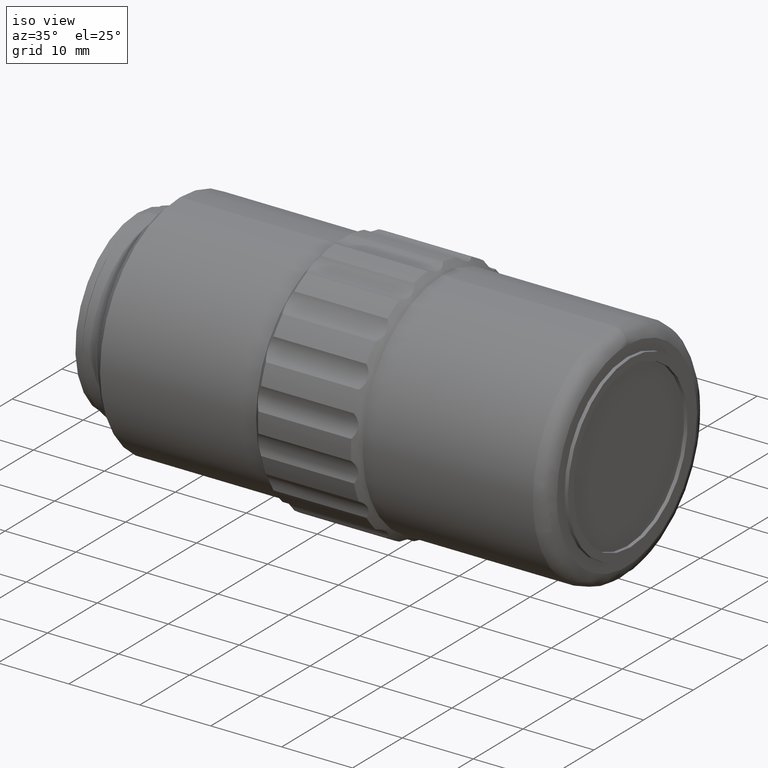
[diagram: clean part render]
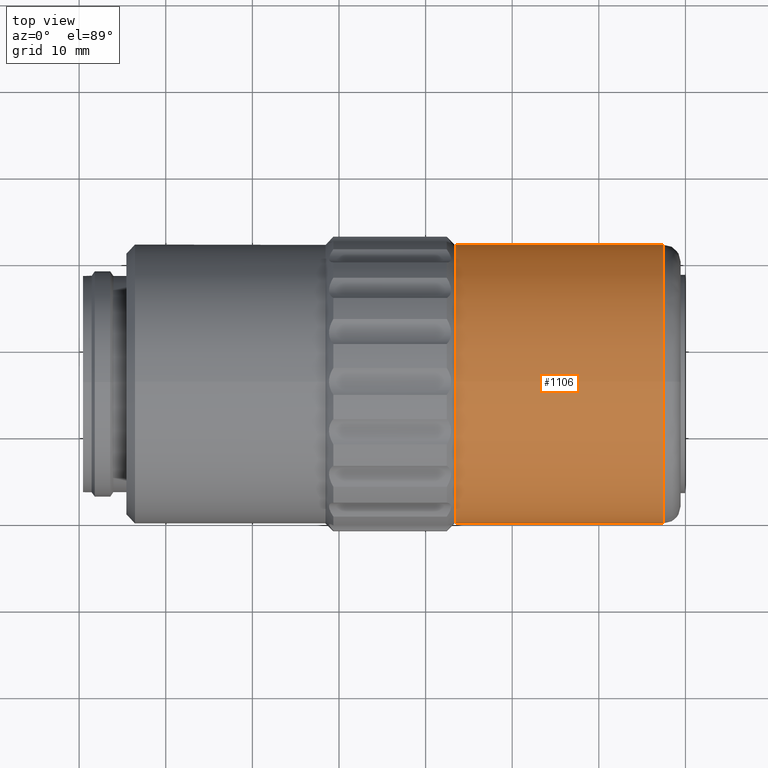
[diagram: tour spotlight — one face highlighted and labeled with its STEP entity id]
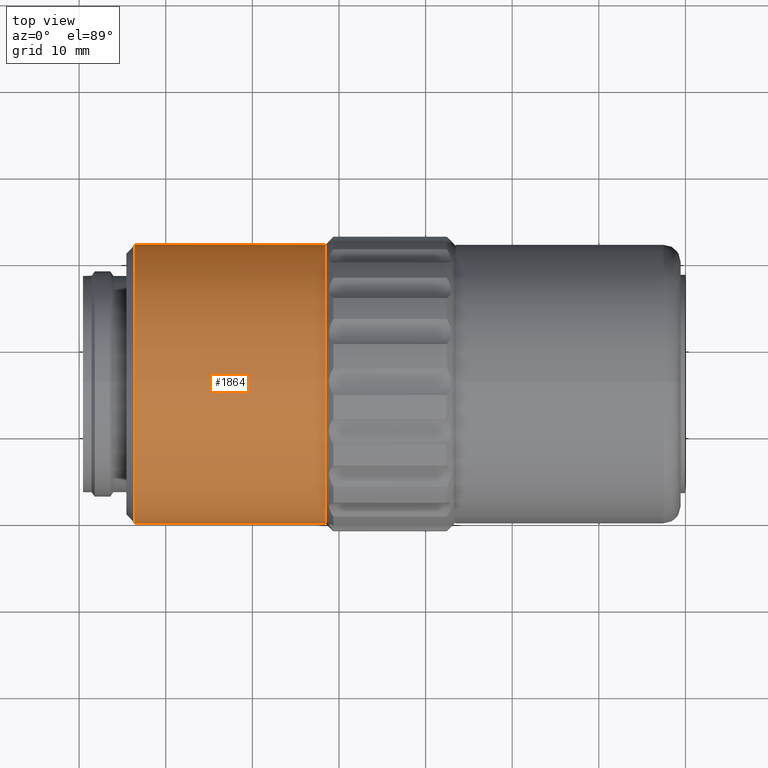
[diagram: tour spotlight — one face highlighted and labeled with its STEP entity id]
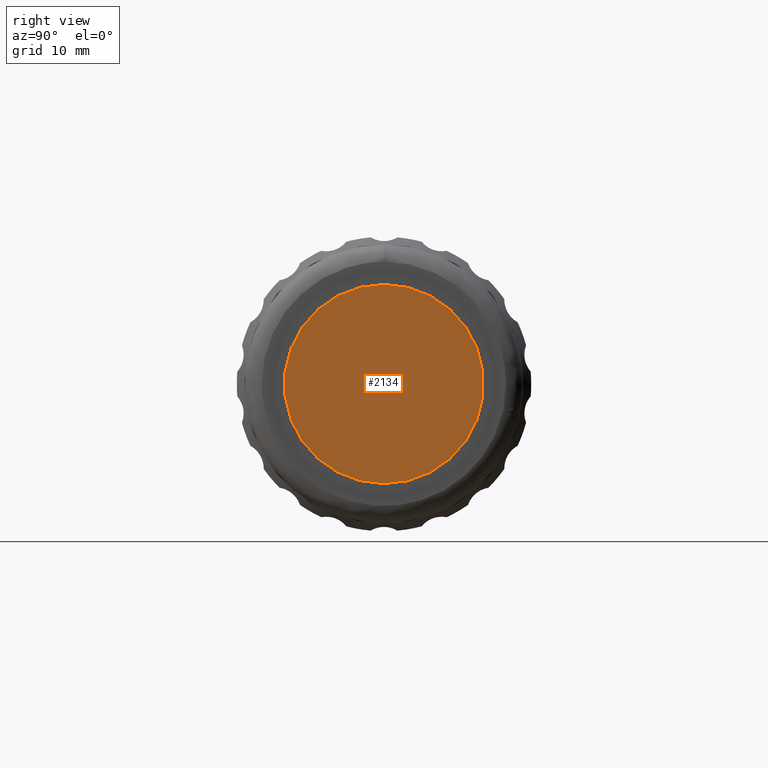
[diagram: tour spotlight — one face highlighted and labeled with its STEP entity id]
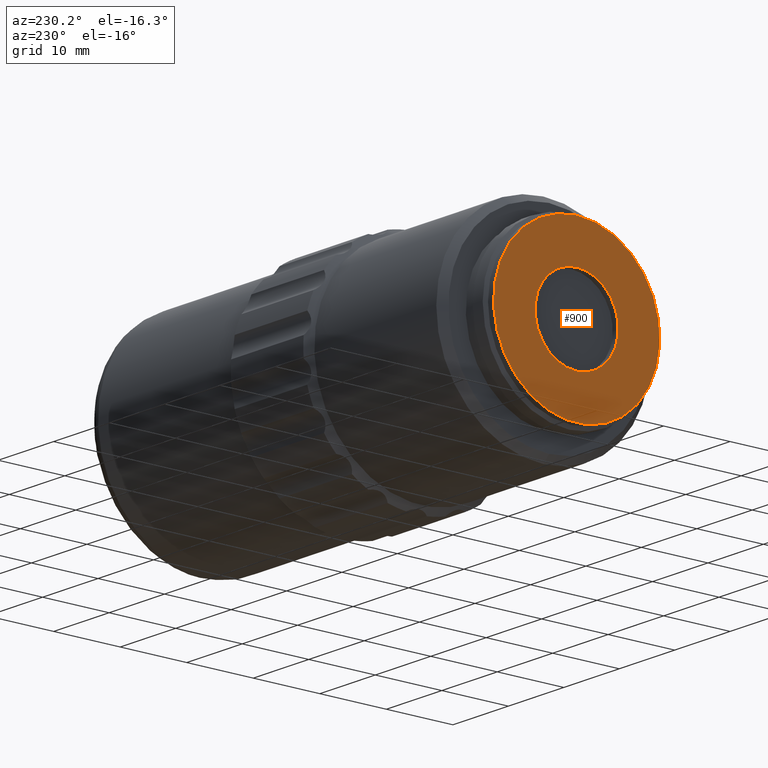
[diagram: tour spotlight — one face highlighted and labeled with its STEP entity id]
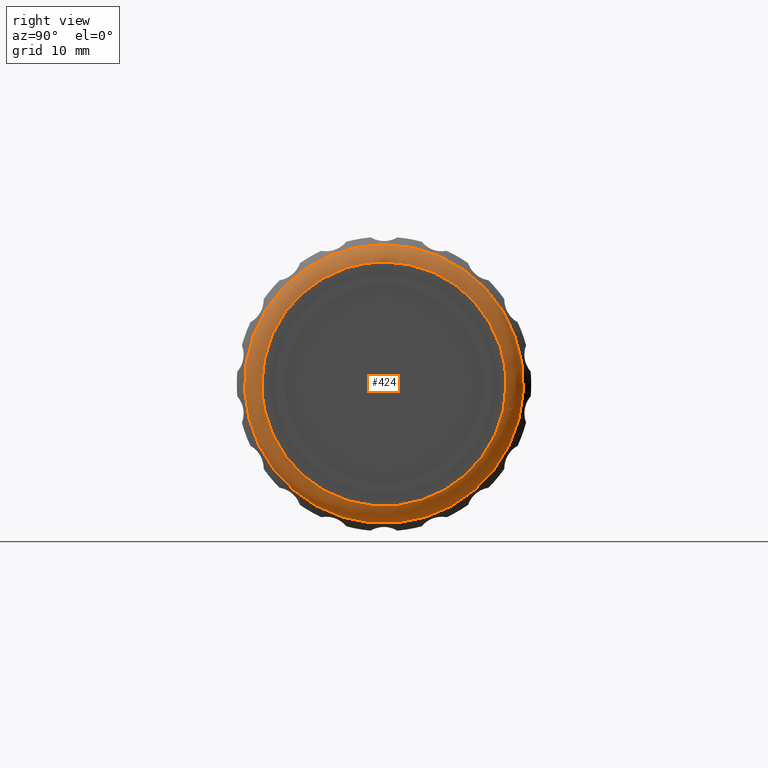
[diagram: tour spotlight — one face highlighted and labeled with its STEP entity id]
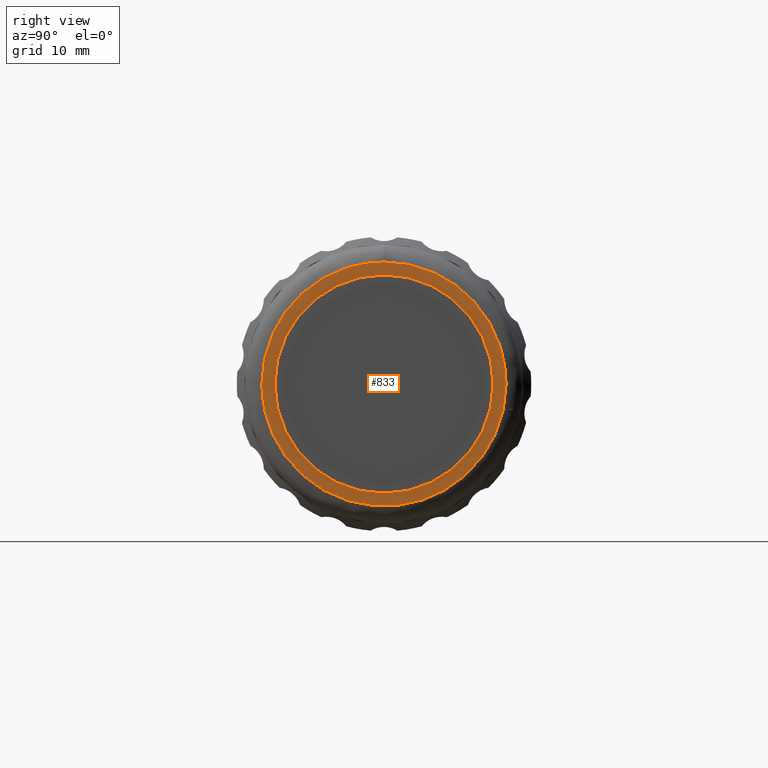
[diagram: tour spotlight — one face highlighted and labeled with its STEP entity id]
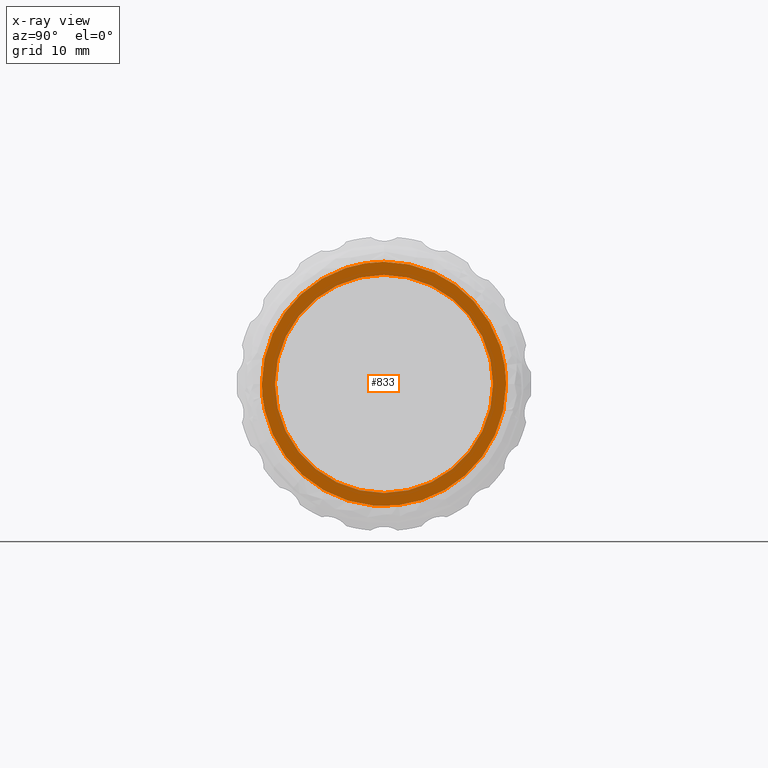
[diagram: x-ray of the same camera — body ghosted, this tour face saturated]
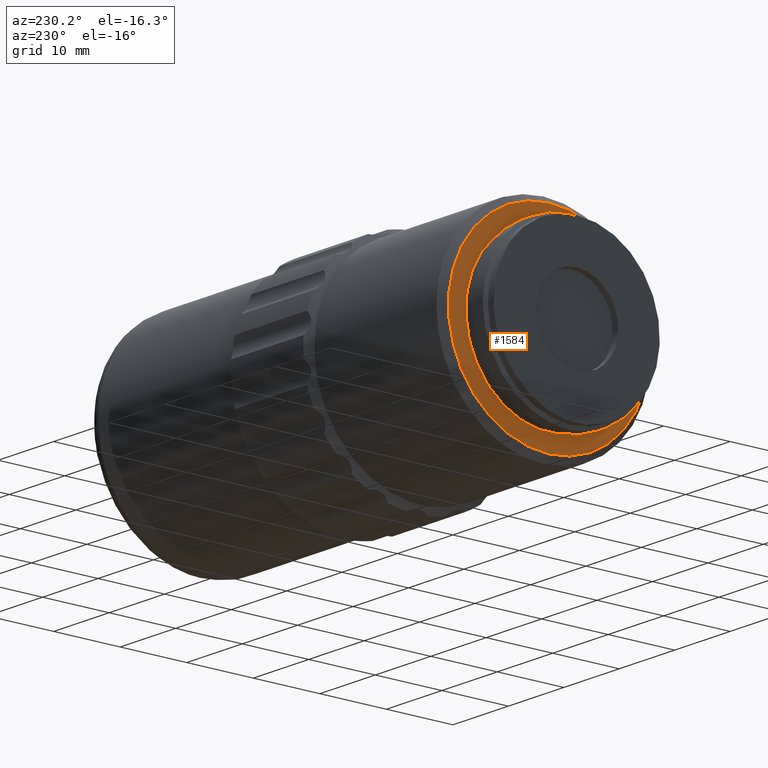
[diagram: tour spotlight — one face highlighted and labeled with its STEP entity id]
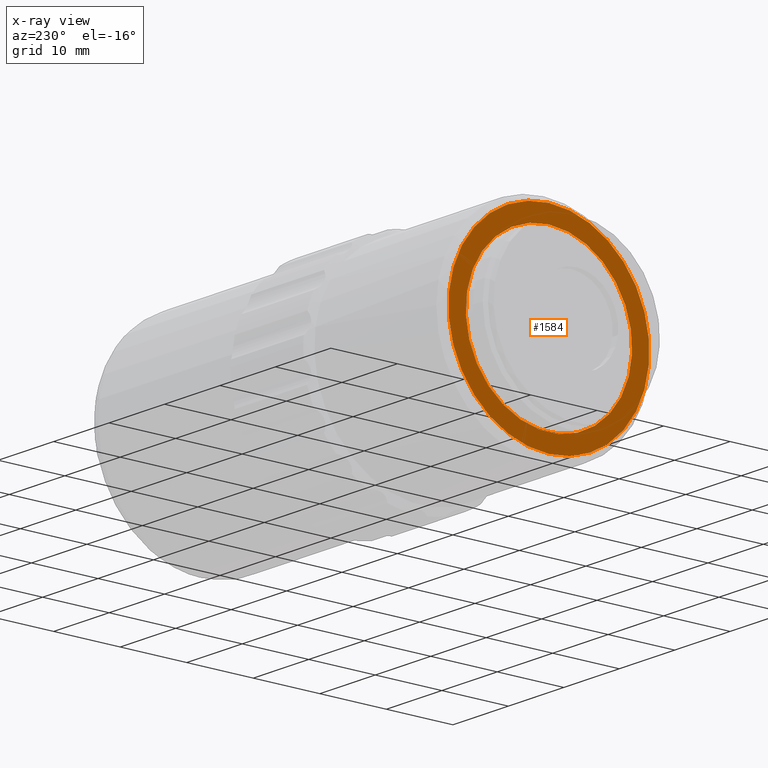
[diagram: x-ray of the same camera — body ghosted, this tour face saturated]
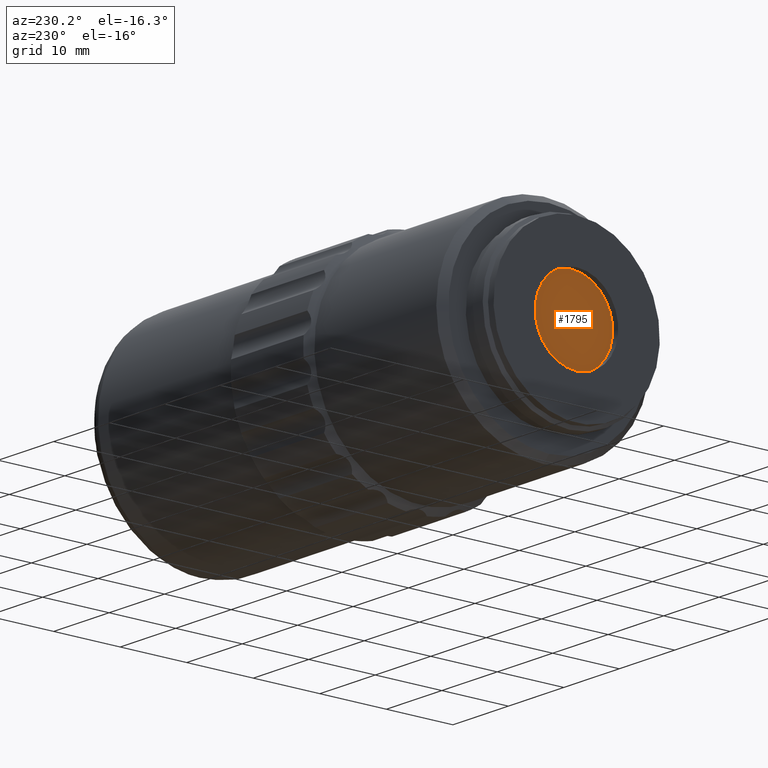
[diagram: tour spotlight — one face highlighted and labeled with its STEP entity id]
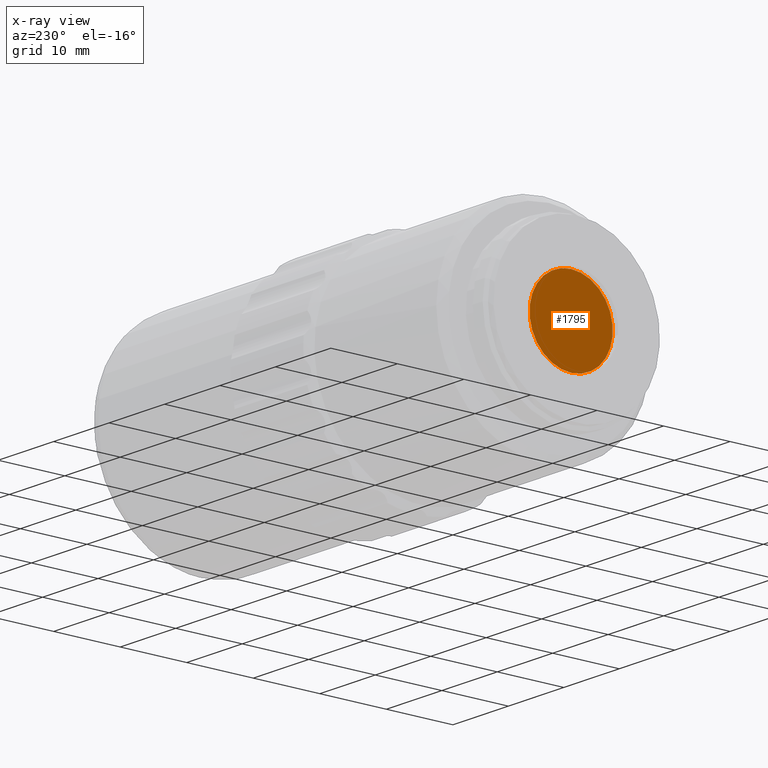
[diagram: x-ray of the same camera — body ghosted, this tour face saturated]
A machine part: a face-by-face anatomy tour. The part has 57 B-rep faces; the first image is the clean iso view, then the 8 largest visible faces are spotlighted one at a time (largest first), each with its STEP entity span.

Face 1 — top view, entity #1106. In plain terms, the highlighted cylindrical surface (bore or boss wall) has radius 16.1 mm, axis along (-1, 0, 0).
Definition (entity closure, byte-faithful):
#56 = CARTESIAN_POINT ( 'NONE',  ( 44.14685803487879667, 46.02096199999999726, 0.000000000000000000 ) ) ;
#72 = EDGE_CURVE ( 'NONE', #780, #780, #976, .T. ) ;
#89 = FACE_OUTER_BOUND ( 'NONE', #842, .T. ) ;
#152 = AXIS2_PLACEMENT_3D ( 'NONE', #209, #865, #1537 ) ;
#209 = CARTESIAN_POINT ( 'NONE',  ( 57.44685803487880804, 46.02096199999999726, 0.000000000000000000 ) ) ;
#308 = ORIENTED_EDGE ( 'NONE', *, *, #72, .T. ) ;
#562 = AXIS2_PLACEMENT_3D ( 'NONE', #56, #857, #695 ) ;
#695 = DIRECTION ( 'NONE',  ( 0.000000000000000000, 0.000000000000000000, 1.000000000000000000 ) ) ;
#774 = ORIENTED_EDGE ( 'NONE', *, *, #1344, .T. ) ;
#780 = VERTEX_POINT ( 'NONE', #1282 ) ;
#842 = EDGE_LOOP ( 'NONE', ( #308 ) ) ;
#857 = DIRECTION ( 'NONE',  ( -1.000000000000000000, 0.000000000000000000, 0.000000000000000000 ) ) ;
#865 = DIRECTION ( 'NONE',  ( -1.000000000000000000, 0.000000000000000000, 0.000000000000000000 ) ) ;
#976 = CIRCLE ( 'NONE', #1393, 16.10000000000000142 ) ;
#993 = CARTESIAN_POINT ( 'NONE',  ( 33.44685803487879383, 46.02096199999999726, 0.000000000000000000 ) ) ;
#1069 = EDGE_LOOP ( 'NONE', ( #774 ) ) ;
#1083 = CIRCLE ( 'NONE', #152, 16.10000000000000142 ) ;
#1106 = ADVANCED_FACE ( 'NONE', ( #89, #1856 ), #1876, .T. ) ;
#1129 = CARTESIAN_POINT ( 'NONE',  ( 57.44685803487880804, 46.02096199999999726, 16.10000000000000142 ) ) ;
#1282 = CARTESIAN_POINT ( 'NONE',  ( 33.44685803487879383, 46.02096199999999726, 16.10000000000000142 ) ) ;
#1344 = EDGE_CURVE ( 'NONE', #1462, #1462, #1083, .T. ) ;
#1393 = AXIS2_PLACEMENT_3D ( 'NONE', #993, #2005, #1839 ) ;
#1462 = VERTEX_POINT ( 'NONE', #1129 ) ;
#1537 = DIRECTION ( 'NONE',  ( 0.000000000000000000, 0.000000000000000000, 1.000000000000000000 ) ) ;
#1839 = DIRECTION ( 'NONE',  ( 0.000000000000000000, 0.000000000000000000, 1.000000000000000000 ) ) ;
#1856 = FACE_OUTER_BOUND ( 'NONE', #1069, .T. ) ;
#1876 = CYLINDRICAL_SURFACE ( 'NONE', #562, 16.10000000000000142 ) ;
#2005 = DIRECTION ( 'NONE',  ( 1.000000000000000000, -0.000000000000000000, -0.000000000000000000 ) ) ;

Face 2 — top view, entity #1864. In plain terms, the highlighted cylindrical surface (bore or boss wall) has radius 16.1 mm, axis along (-1, 0, 0).
Definition (entity closure, byte-faithful):
#151 = EDGE_LOOP ( 'NONE', ( #489 ) ) ;
#156 = CYLINDRICAL_SURFACE ( 'NONE', #1875, 16.10000000000000142 ) ;
#199 = DIRECTION ( 'NONE',  ( 0.000000000000000000, 0.000000000000000000, 1.000000000000000000 ) ) ;
#216 = EDGE_CURVE ( 'NONE', #960, #960, #1323, .T. ) ;
#429 = CARTESIAN_POINT ( 'NONE',  ( 18.44685803487879738, 29.92096199999999584, 0.000000000000000000 ) ) ;
#451 = DIRECTION ( 'NONE',  ( -1.000000000000000000, 0.000000000000000000, 0.000000000000000000 ) ) ;
#489 = ORIENTED_EDGE ( 'NONE', *, *, #1684, .F. ) ;
#536 = DIRECTION ( 'NONE',  ( 1.000000000000000000, -0.000000000000000000, -0.000000000000000000 ) ) ;
#580 = DIRECTION ( 'NONE',  ( 1.000000000000000000, 0.000000000000000000, 0.000000000000000000 ) ) ;
#605 = EDGE_LOOP ( 'NONE', ( #1603 ) ) ;
#688 = CIRCLE ( 'NONE', #1424, 16.10000000000000142 ) ;
#749 = CARTESIAN_POINT ( 'NONE',  ( 18.44685803487879738, 46.02096199999999726, 0.000000000000000000 ) ) ;
#867 = AXIS2_PLACEMENT_3D ( 'NONE', #1025, #536, #199 ) ;
#960 = VERTEX_POINT ( 'NONE', #1619 ) ;
#1025 = CARTESIAN_POINT ( 'NONE',  ( -3.553141965121202617, 46.02096199999999726, 0.000000000000000000 ) ) ;
#1275 = FACE_OUTER_BOUND ( 'NONE', #605, .T. ) ;
#1298 = DIRECTION ( 'NONE',  ( 0.000000000000000000, 0.000000000000000000, 1.000000000000000000 ) ) ;
#1323 = CIRCLE ( 'NONE', #867, 16.10000000000000142 ) ;
#1424 = AXIS2_PLACEMENT_3D ( 'NONE', #749, #580, #1898 ) ;
#1603 = ORIENTED_EDGE ( 'NONE', *, *, #216, .T. ) ;
#1619 = CARTESIAN_POINT ( 'NONE',  ( -3.553141965121202617, 46.02096199999999726, 16.10000000000000142 ) ) ;
#1684 = EDGE_CURVE ( 'NONE', #1921, #1921, #688, .T. ) ;
#1800 = CARTESIAN_POINT ( 'NONE',  ( 6.946858034878798271, 46.02096199999999726, 0.000000000000000000 ) ) ;
#1864 = ADVANCED_FACE ( 'NONE', ( #1275, #1943 ), #156, .T. ) ;
#1875 = AXIS2_PLACEMENT_3D ( 'NONE', #1800, #451, #1298 ) ;
#1898 = DIRECTION ( 'NONE',  ( 0.000000000000000000, -1.000000000000000000, 0.000000000000000000 ) ) ;
#1921 = VERTEX_POINT ( 'NONE', #429 ) ;
#1943 = FACE_OUTER_BOUND ( 'NONE', #151, .T. ) ;

Face 3 — right view, entity #2134. In plain terms, the highlighted planar face has unit normal (1, 0, 0).
Definition (entity closure, byte-faithful):
#2 = EDGE_LOOP ( 'NONE', ( #330 ) ) ;
#289 = FACE_OUTER_BOUND ( 'NONE', #2, .T. ) ;
#330 = ORIENTED_EDGE ( 'NONE', *, *, #478, .T. ) ;
#345 = AXIS2_PLACEMENT_3D ( 'NONE', #1798, #471, #1452 ) ;
#471 = DIRECTION ( 'NONE',  ( 1.000000000000000000, 0.000000000000000000, 0.000000000000000000 ) ) ;
#478 = EDGE_CURVE ( 'NONE', #1605, #1605, #1642, .T. ) ;
#559 = AXIS2_PLACEMENT_3D ( 'NONE', #634, #1978, #1300 ) ;
#634 = CARTESIAN_POINT ( 'NONE',  ( 59.44685803487880804, 46.02096199999999726, 0.000000000000000000 ) ) ;
#757 = CARTESIAN_POINT ( 'NONE',  ( 59.44685803487880804, 46.02096199999999726, -11.50000000000000000 ) ) ;
#1300 = DIRECTION ( 'NONE',  ( 0.000000000000000000, 0.000000000000000000, -1.000000000000000000 ) ) ;
#1452 = DIRECTION ( 'NONE',  ( 0.000000000000000000, 0.000000000000000000, -1.000000000000000000 ) ) ;
#1605 = VERTEX_POINT ( 'NONE', #757 ) ;
#1642 = CIRCLE ( 'NONE', #559, 11.50000000000000000 ) ;
#1798 = CARTESIAN_POINT ( 'NONE',  ( 59.44685803487880804, 46.02096199999999726, 3.552713678800500140E-15 ) ) ;
#1964 = PLANE ( 'NONE',  #345 ) ;
#1978 = DIRECTION ( 'NONE',  ( 1.000000000000000000, 0.000000000000000000, 0.000000000000000000 ) ) ;
#2134 = ADVANCED_FACE ( 'NONE', ( #289 ), #1964, .T. ) ;

Face 4 — auxiliary view, entity #900. In plain terms, the highlighted planar face has unit normal (-1, 0, 0).
Definition (entity closure, byte-faithful):
#16 = DIRECTION ( 'NONE',  ( -1.000000000000000000, 0.000000000000000000, 0.000000000000000000 ) ) ;
#53 = AXIS2_PLACEMENT_3D ( 'NONE', #1134, #2148, #785 ) ;
#274 = CIRCLE ( 'NONE', #1562, 12.50000000000000000 ) ;
#300 = VERTEX_POINT ( 'NONE', #2129 ) ;
#353 = DIRECTION ( 'NONE',  ( 0.000000000000000000, 0.000000000000000000, 1.000000000000000000 ) ) ;
#469 = ORIENTED_EDGE ( 'NONE', *, *, #1438, .T. ) ;
#494 = CIRCLE ( 'NONE', #53, 6.250000000000000000 ) ;
#588 = CARTESIAN_POINT ( 'NONE',  ( -9.553141965121202617, 46.02096199999999726, 6.250000000000000000 ) ) ;
#785 = DIRECTION ( 'NONE',  ( 0.000000000000000000, 0.000000000000000000, 1.000000000000000000 ) ) ;
#806 = FACE_OUTER_BOUND ( 'NONE', #2099, .T. ) ;
#826 = DIRECTION ( 'NONE',  ( 1.000000000000000000, -0.000000000000000000, -0.000000000000000000 ) ) ;
#900 = ADVANCED_FACE ( 'NONE', ( #806, #1165 ), #1496, .T. ) ;
#1021 = DIRECTION ( 'NONE',  ( 0.000000000000000000, 0.000000000000000000, 1.000000000000000000 ) ) ;
#1134 = CARTESIAN_POINT ( 'NONE',  ( -9.553141965121202617, 46.02096199999999726, 0.000000000000000000 ) ) ;
#1165 = FACE_BOUND ( 'NONE', #1174, .T. ) ;
#1174 = EDGE_LOOP ( 'NONE', ( #469 ) ) ;
#1356 = ORIENTED_EDGE ( 'NONE', *, *, #1931, .F. ) ;
#1438 = EDGE_CURVE ( 'NONE', #2081, #2081, #494, .T. ) ;
#1496 = PLANE ( 'NONE',  #1714 ) ;
#1562 = AXIS2_PLACEMENT_3D ( 'NONE', #2019, #826, #1021 ) ;
#1714 = AXIS2_PLACEMENT_3D ( 'NONE', #1813, #16, #353 ) ;
#1813 = CARTESIAN_POINT ( 'NONE',  ( -9.553141965121202617, 57.87096199999999868, 0.000000000000000000 ) ) ;
#1931 = EDGE_CURVE ( 'NONE', #300, #300, #274, .T. ) ;
#2019 = CARTESIAN_POINT ( 'NONE',  ( -9.553141965121202617, 46.02096199999999726, 0.000000000000000000 ) ) ;
#2081 = VERTEX_POINT ( 'NONE', #588 ) ;
#2099 = EDGE_LOOP ( 'NONE', ( #1356 ) ) ;
#2129 = CARTESIAN_POINT ( 'NONE',  ( -9.553141965121202617, 46.02096199999999726, 12.50000000000000000 ) ) ;
#2148 = DIRECTION ( 'NONE',  ( 1.000000000000000000, -0.000000000000000000, -0.000000000000000000 ) ) ;

Face 5 — right view, entity #424. In plain terms, the highlighted face is a freeform B-spline surface patch.
Definition (entity closure, byte-faithful):
#8 = CARTESIAN_POINT ( 'NONE',  ( 59.44685803487880804, 60.12096199999999868, 0.000000000000000000 ) ) ;
#93 = CARTESIAN_POINT ( 'NONE',  ( 59.44685803487881515, 60.12096200000000579, -28.19999999999999929 ) ) ;
#103 = CARTESIAN_POINT ( 'NONE',  ( 59.44685803487880804, 31.92096199999999584, -1.036051192078660836E-15 ) ) ;
#136 = CARTESIAN_POINT ( 'NONE',  ( 59.44685803487880804, 46.02096199999999726, 14.10000000000000142 ) ) ;
#152 = AXIS2_PLACEMENT_3D ( 'NONE', #209, #865, #1537 ) ;
#167 = CARTESIAN_POINT ( 'NONE',  ( 57.44685803487880094, 62.12096200000000579, -32.20000000000000284 ) ) ;
#176 = CARTESIAN_POINT ( 'NONE',  ( 59.44685803487881515, 30.74938912474618391, 0.000000000000000000 ) ) ;
#181 = ORIENTED_EDGE ( 'NONE', *, *, #1422, .T. ) ;
#209 = CARTESIAN_POINT ( 'NONE',  ( 57.44685803487880804, 46.02096199999999726, 0.000000000000000000 ) ) ;
#306 =( BOUNDED_CURVE ( )  B_SPLINE_CURVE ( 3, ( #775, #93, #1402, #103 ),
 .UNSPECIFIED., .F., .T. ) 
 B_SPLINE_CURVE_WITH_KNOTS ( ( 4, 4 ),
 ( 0.000000000000000000, 1.000000000000000000 ),
 .UNSPECIFIED. ) 
 CURVE ( )  GEOMETRIC_REPRESENTATION_ITEM ( )  RATIONAL_B_SPLINE_CURVE ( ( 1.000000000000000000, 0.3333333333333333703, 0.3333333333333333703, 1.000000000000000000 ) ) 
 REPRESENTATION_ITEM ( '' )  );
#314 = CARTESIAN_POINT ( 'NONE',  ( 58.61843091013261642, 62.12096199999999868, 0.000000000000000000 ) ) ;
#318 =( BOUNDED_CURVE ( )  B_SPLINE_CURVE ( 3, ( #1954, #463, #1788, #1142 ),
 .UNSPECIFIED., .F., .T. ) 
 B_SPLINE_CURVE_WITH_KNOTS ( ( 4, 4 ),
 ( 0.000000000000000000, 1.000000000000000000 ),
 .UNSPECIFIED. ) 
 CURVE ( )  GEOMETRIC_REPRESENTATION_ITEM ( )  RATIONAL_B_SPLINE_CURVE ( ( 1.000000000000000000, 0.8047378541243649375, 0.8047378541243649375, 1.000000000000000000 ) ) 
 REPRESENTATION_ITEM ( '' )  );
#343 = CARTESIAN_POINT ( 'NONE',  ( 59.44685803487881515, 31.92096199999999229, 28.20000000000000284 ) ) ;
#348 = EDGE_CURVE ( 'NONE', #1382, #745, #306, .T. ) ;
#424 = ADVANCED_FACE ( 'NONE', ( #809, #1660 ), #1944, .T. ) ;
#463 = CARTESIAN_POINT ( 'NONE',  ( 59.44685803487881515, 54.28055077053935662, 14.09999999999999964 ) ) ;
#499 = CARTESIAN_POINT ( 'NONE',  ( 59.44685803487881515, 60.12096199999999868, -28.20000000000000284 ) ) ;
#509 = CARTESIAN_POINT ( 'NONE',  ( 59.44685803487881515, 61.29253487525379995, 0.000000000000000000 ) ) ;
#584 = CARTESIAN_POINT ( 'NONE',  ( 59.44685803487880804, 60.12096199999999868, 0.000000000000000000 ) ) ;
#635 = CARTESIAN_POINT ( 'NONE',  ( 59.44685803487880804, 31.92096199999999584, -1.036051192078660836E-15 ) ) ;
#644 = CARTESIAN_POINT ( 'NONE',  ( 59.44685803487880804, 60.12096199999999868, 0.000000000000000000 ) ) ;
#666 = CARTESIAN_POINT ( 'NONE',  ( 57.44685803487880804, 62.12096199999999868, 0.000000000000000000 ) ) ;
#745 = VERTEX_POINT ( 'NONE', #1232 ) ;
#775 = CARTESIAN_POINT ( 'NONE',  ( 59.44685803487880804, 60.12096199999999868, 0.000000000000000000 ) ) ;
#784 = CARTESIAN_POINT ( 'NONE',  ( 58.61843091013261642, 29.92096199999999584, 32.20000000000000284 ) ) ;
#798 = CARTESIAN_POINT ( 'NONE',  ( 58.61843091013261642, 29.92096199999999939, 0.000000000000000000 ) ) ;
#809 = FACE_OUTER_BOUND ( 'NONE', #1956, .T. ) ;
#818 = CARTESIAN_POINT ( 'NONE',  ( 58.61843091013261642, 29.92096199999999584, -32.20000000000000284 ) ) ;
#834 = EDGE_CURVE ( 'NONE', #1830, #1382, #318, .T. ) ;
#841 =( BOUNDED_CURVE ( )  B_SPLINE_CURVE ( 3, ( #635, #1958, #1818, #136 ),
 .UNSPECIFIED., .F., .T. ) 
 B_SPLINE_CURVE_WITH_KNOTS ( ( 4, 4 ),
 ( 0.000000000000000000, 1.000000000000000000 ),
 .UNSPECIFIED. ) 
 CURVE ( )  GEOMETRIC_REPRESENTATION_ITEM ( )  RATIONAL_B_SPLINE_CURVE ( ( 1.000000000000000000, 0.8047378541243649375, 0.8047378541243649375, 1.000000000000000000 ) ) 
 REPRESENTATION_ITEM ( '' )  );
#865 = DIRECTION ( 'NONE',  ( -1.000000000000000000, 0.000000000000000000, 0.000000000000000000 ) ) ;
#932 = ORIENTED_EDGE ( 'NONE', *, *, #1344, .F. ) ;
#942 = CARTESIAN_POINT ( 'NONE',  ( 59.44685803487880804, 46.02096199999999726, 14.10000000000000142 ) ) ;
#964 = CARTESIAN_POINT ( 'NONE',  ( 57.44685803487880804, 29.92096199999999584, 0.000000000000000000 ) ) ;
#991 = CARTESIAN_POINT ( 'NONE',  ( 57.44685803487880804, 62.12096199999999868, 0.000000000000000000 ) ) ;
#1083 = CIRCLE ( 'NONE', #152, 16.10000000000000142 ) ;
#1129 = CARTESIAN_POINT ( 'NONE',  ( 57.44685803487880804, 46.02096199999999726, 16.10000000000000142 ) ) ;
#1133 = CARTESIAN_POINT ( 'NONE',  ( 58.61843091013261642, 62.12096199999999868, 0.000000000000000000 ) ) ;
#1142 = CARTESIAN_POINT ( 'NONE',  ( 59.44685803487880804, 60.12096199999999868, 0.000000000000000000 ) ) ;
#1145 = CARTESIAN_POINT ( 'NONE',  ( 58.61843091013261642, 62.12096199999999868, -32.20000000000000284 ) ) ;
#1168 = CARTESIAN_POINT ( 'NONE',  ( 59.44685803487880804, 31.92096199999999584, 0.000000000000000000 ) ) ;
#1175 = CARTESIAN_POINT ( 'NONE',  ( 59.44685803487881515, 61.29253487525379995, 0.000000000000000000 ) ) ;
#1232 = CARTESIAN_POINT ( 'NONE',  ( 59.44685803487880804, 31.92096199999999584, -1.036051192078660836E-15 ) ) ;
#1335 = CARTESIAN_POINT ( 'NONE',  ( 58.61843091013261642, 62.12096199999999868, 32.20000000000000284 ) ) ;
#1344 = EDGE_CURVE ( 'NONE', #1462, #1462, #1083, .T. ) ;
#1382 = VERTEX_POINT ( 'NONE', #584 ) ;
#1402 = CARTESIAN_POINT ( 'NONE',  ( 59.44685803487881515, 31.92096199999999584, -28.19999999999999929 ) ) ;
#1422 = EDGE_CURVE ( 'NONE', #745, #1830, #841, .T. ) ;
#1456 = CARTESIAN_POINT ( 'NONE',  ( 57.44685803487880094, 29.92096199999999584, 32.20000000000000284 ) ) ;
#1460 = ORIENTED_EDGE ( 'NONE', *, *, #348, .T. ) ;
#1462 = VERTEX_POINT ( 'NONE', #1129 ) ;
#1473 = EDGE_LOOP ( 'NONE', ( #932 ) ) ;
#1489 = CARTESIAN_POINT ( 'NONE',  ( 59.44685803487881515, 61.29253487525381416, -30.54314575050762315 ) ) ;
#1537 = DIRECTION ( 'NONE',  ( 0.000000000000000000, 0.000000000000000000, 1.000000000000000000 ) ) ;
#1660 = FACE_OUTER_BOUND ( 'NONE', #1473, .T. ) ;
#1727 = ORIENTED_EDGE ( 'NONE', *, *, #834, .T. ) ;
#1788 = CARTESIAN_POINT ( 'NONE',  ( 59.44685803487881515, 60.12096199999999868, 8.259588770539359359 ) ) ;
#1791 = CARTESIAN_POINT ( 'NONE',  ( 57.44685803487880094, 62.12096200000000579, 32.20000000000000284 ) ) ;
#1818 = CARTESIAN_POINT ( 'NONE',  ( 59.44685803487881515, 37.76137322946063790, 14.09999999999999964 ) ) ;
#1827 = CARTESIAN_POINT ( 'NONE',  ( 59.44685803487881515, 60.12096199999999868, 28.20000000000000284 ) ) ;
#1830 = VERTEX_POINT ( 'NONE', #942 ) ;
#1835 = CARTESIAN_POINT ( 'NONE',  ( 59.44685803487881515, 31.92096199999999229, -28.20000000000000284 ) ) ;
#1944 =( BOUNDED_SURFACE ( )  B_SPLINE_SURFACE ( 3, 3, ( 
 ( #991, #167, #1957, #964, #1456, #1791, #666 ),
 ( #314, #1145, #818, #798, #784, #1335, #1133 ),
 ( #1175, #1489, #2003, #176, #2147, #2138, #509 ),
 ( #8, #499, #1835, #1168, #343, #1827, #644 ) ),
 .UNSPECIFIED., .F., .T., .T. ) 
 B_SPLINE_SURFACE_WITH_KNOTS ( ( 4, 4 ),
 ( 4, 3, 4 ),
 ( 0.000000000000000000, 1.000000000000000000 ),
 ( 0.000000000000000000, 0.5000000000000000000, 1.000000000000000000 ),
 .UNSPECIFIED. ) 
 GEOMETRIC_REPRESENTATION_ITEM ( )  RATIONAL_B_SPLINE_SURFACE ( (
 ( 1.000000000000000000, 0.3333333333333333148, 0.3333333333333333148, 1.000000000000000000, 0.3333333333333333148, 0.3333333333333333148, 1.000000000000000000),
 ( 0.8047378541243649375, 0.2682459513747882940, 0.2682459513747882940, 0.8047378541243649375, 0.2682459513747882940, 0.2682459513747882940, 0.8047378541243649375),
 ( 0.8047378541243649375, 0.2682459513747882940, 0.2682459513747882940, 0.8047378541243649375, 0.2682459513747882940, 0.2682459513747882940, 0.8047378541243649375),
 ( 1.000000000000000000, 0.3333333333333333148, 0.3333333333333333148, 1.000000000000000000, 0.3333333333333333148, 0.3333333333333333148, 1.000000000000000000) ) ) 
 REPRESENTATION_ITEM ( '' )  SURFACE ( )  );
#1954 = CARTESIAN_POINT ( 'NONE',  ( 59.44685803487880804, 46.02096199999999726, 14.10000000000000142 ) ) ;
#1956 = EDGE_LOOP ( 'NONE', ( #1727, #1460, #181 ) ) ;
#1957 = CARTESIAN_POINT ( 'NONE',  ( 57.44685803487880094, 29.92096199999999584, -32.20000000000000284 ) ) ;
#1958 = CARTESIAN_POINT ( 'NONE',  ( 59.44685803487881515, 31.92096199999999584, 8.259588770539357583 ) ) ;
#2003 = CARTESIAN_POINT ( 'NONE',  ( 59.44685803487881515, 30.74938912474619102, -30.54314575050762315 ) ) ;
#2138 = CARTESIAN_POINT ( 'NONE',  ( 59.44685803487881515, 61.29253487525381416, 30.54314575050762315 ) ) ;
#2147 = CARTESIAN_POINT ( 'NONE',  ( 59.44685803487881515, 30.74938912474618391, 30.54314575050763025 ) ) ;

Face 6 — right view, entity #833. An x-ray twin of the same camera follows (body ghosted, this face saturated) — the face is partly hidden behind the body. In plain terms, the highlighted planar face has unit normal (1, 0, 0).
Definition (entity closure, byte-faithful):
#93 = CARTESIAN_POINT ( 'NONE',  ( 59.44685803487881515, 60.12096200000000579, -28.19999999999999929 ) ) ;
#103 = CARTESIAN_POINT ( 'NONE',  ( 59.44685803487880804, 31.92096199999999584, -1.036051192078660836E-15 ) ) ;
#136 = CARTESIAN_POINT ( 'NONE',  ( 59.44685803487880804, 46.02096199999999726, 14.10000000000000142 ) ) ;
#306 =( BOUNDED_CURVE ( )  B_SPLINE_CURVE ( 3, ( #775, #93, #1402, #103 ),
 .UNSPECIFIED., .F., .T. ) 
 B_SPLINE_CURVE_WITH_KNOTS ( ( 4, 4 ),
 ( 0.000000000000000000, 1.000000000000000000 ),
 .UNSPECIFIED. ) 
 CURVE ( )  GEOMETRIC_REPRESENTATION_ITEM ( )  RATIONAL_B_SPLINE_CURVE ( ( 1.000000000000000000, 0.3333333333333333703, 0.3333333333333333703, 1.000000000000000000 ) ) 
 REPRESENTATION_ITEM ( '' )  );
#318 =( BOUNDED_CURVE ( )  B_SPLINE_CURVE ( 3, ( #1954, #463, #1788, #1142 ),
 .UNSPECIFIED., .F., .T. ) 
 B_SPLINE_CURVE_WITH_KNOTS ( ( 4, 4 ),
 ( 0.000000000000000000, 1.000000000000000000 ),
 .UNSPECIFIED. ) 
 CURVE ( )  GEOMETRIC_REPRESENTATION_ITEM ( )  RATIONAL_B_SPLINE_CURVE ( ( 1.000000000000000000, 0.8047378541243649375, 0.8047378541243649375, 1.000000000000000000 ) ) 
 REPRESENTATION_ITEM ( '' )  );
#323 = FACE_BOUND ( 'NONE', #1796, .T. ) ;
#340 = CARTESIAN_POINT ( 'NONE',  ( 59.44685803487880804, 46.02096199999999726, 4.350675744370770171E-31 ) ) ;
#348 = EDGE_CURVE ( 'NONE', #1382, #745, #306, .T. ) ;
#352 = AXIS2_PLACEMENT_3D ( 'NONE', #340, #1520, #1844 ) ;
#450 = CARTESIAN_POINT ( 'NONE',  ( 59.44685803487880804, 46.02096199999999726, 14.44999999999999929 ) ) ;
#463 = CARTESIAN_POINT ( 'NONE',  ( 59.44685803487881515, 54.28055077053935662, 14.09999999999999964 ) ) ;
#528 = CIRCLE ( 'NONE', #352, 12.59999999999999964 ) ;
#581 = ORIENTED_EDGE ( 'NONE', *, *, #834, .F. ) ;
#584 = CARTESIAN_POINT ( 'NONE',  ( 59.44685803487880804, 60.12096199999999868, 0.000000000000000000 ) ) ;
#635 = CARTESIAN_POINT ( 'NONE',  ( 59.44685803487880804, 31.92096199999999584, -1.036051192078660836E-15 ) ) ;
#745 = VERTEX_POINT ( 'NONE', #1232 ) ;
#771 = CARTESIAN_POINT ( 'NONE',  ( 59.44685803487880804, 46.02096199999999726, -12.59999999999999964 ) ) ;
#775 = CARTESIAN_POINT ( 'NONE',  ( 59.44685803487880804, 60.12096199999999868, 0.000000000000000000 ) ) ;
#833 = ADVANCED_FACE ( 'NONE', ( #1297, #323 ), #1965, .T. ) ;
#834 = EDGE_CURVE ( 'NONE', #1830, #1382, #318, .T. ) ;
#841 =( BOUNDED_CURVE ( )  B_SPLINE_CURVE ( 3, ( #635, #1958, #1818, #136 ),
 .UNSPECIFIED., .F., .T. ) 
 B_SPLINE_CURVE_WITH_KNOTS ( ( 4, 4 ),
 ( 0.000000000000000000, 1.000000000000000000 ),
 .UNSPECIFIED. ) 
 CURVE ( )  GEOMETRIC_REPRESENTATION_ITEM ( )  RATIONAL_B_SPLINE_CURVE ( ( 1.000000000000000000, 0.8047378541243649375, 0.8047378541243649375, 1.000000000000000000 ) ) 
 REPRESENTATION_ITEM ( '' )  );
#887 = EDGE_CURVE ( 'NONE', #1095, #1095, #528, .T. ) ;
#942 = CARTESIAN_POINT ( 'NONE',  ( 59.44685803487880804, 46.02096199999999726, 14.10000000000000142 ) ) ;
#963 = ORIENTED_EDGE ( 'NONE', *, *, #887, .T. ) ;
#985 = DIRECTION ( 'NONE',  ( 0.000000000000000000, 0.000000000000000000, -1.000000000000000000 ) ) ;
#1027 = EDGE_LOOP ( 'NONE', ( #1036, #581, #2070 ) ) ;
#1036 = ORIENTED_EDGE ( 'NONE', *, *, #348, .F. ) ;
#1095 = VERTEX_POINT ( 'NONE', #771 ) ;
#1142 = CARTESIAN_POINT ( 'NONE',  ( 59.44685803487880804, 60.12096199999999868, 0.000000000000000000 ) ) ;
#1232 = CARTESIAN_POINT ( 'NONE',  ( 59.44685803487880804, 31.92096199999999584, -1.036051192078660836E-15 ) ) ;
#1297 = FACE_OUTER_BOUND ( 'NONE', #1027, .T. ) ;
#1382 = VERTEX_POINT ( 'NONE', #584 ) ;
#1402 = CARTESIAN_POINT ( 'NONE',  ( 59.44685803487881515, 31.92096199999999584, -28.19999999999999929 ) ) ;
#1422 = EDGE_CURVE ( 'NONE', #745, #1830, #841, .T. ) ;
#1520 = DIRECTION ( 'NONE',  ( -1.000000000000000000, -0.000000000000000000, -0.000000000000000000 ) ) ;
#1788 = CARTESIAN_POINT ( 'NONE',  ( 59.44685803487881515, 60.12096199999999868, 8.259588770539359359 ) ) ;
#1796 = EDGE_LOOP ( 'NONE', ( #963 ) ) ;
#1818 = CARTESIAN_POINT ( 'NONE',  ( 59.44685803487881515, 37.76137322946063790, 14.09999999999999964 ) ) ;
#1830 = VERTEX_POINT ( 'NONE', #942 ) ;
#1844 = DIRECTION ( 'NONE',  ( 0.000000000000000000, 0.000000000000000000, -1.000000000000000000 ) ) ;
#1883 = AXIS2_PLACEMENT_3D ( 'NONE', #450, #2118, #985 ) ;
#1954 = CARTESIAN_POINT ( 'NONE',  ( 59.44685803487880804, 46.02096199999999726, 14.10000000000000142 ) ) ;
#1958 = CARTESIAN_POINT ( 'NONE',  ( 59.44685803487881515, 31.92096199999999584, 8.259588770539357583 ) ) ;
#1965 = PLANE ( 'NONE',  #1883 ) ;
#2070 = ORIENTED_EDGE ( 'NONE', *, *, #1422, .F. ) ;
#2118 = DIRECTION ( 'NONE',  ( 1.000000000000000000, 0.000000000000000000, 0.000000000000000000 ) ) ;

Face 7 — auxiliary view, entity #1584. An x-ray twin of the same camera follows (body ghosted, this face saturated) — the face is partly hidden behind the body. In plain terms, the highlighted planar face has unit normal (-1, 0, 0).
Definition (entity closure, byte-faithful):
#86 = ORIENTED_EDGE ( 'NONE', *, *, #672, .T. ) ;
#117 = AXIS2_PLACEMENT_3D ( 'NONE', #843, #1512, #197 ) ;
#121 = VERTEX_POINT ( 'NONE', #2096 ) ;
#125 = CARTESIAN_POINT ( 'NONE',  ( -4.553141965121198176, 46.02096199999999726, 5.387339987505588212E-17 ) ) ;
#188 = PLANE ( 'NONE',  #1458 ) ;
#197 = DIRECTION ( 'NONE',  ( 0.000000000000000000, 0.000000000000000000, 1.000000000000000000 ) ) ;
#591 = CIRCLE ( 'NONE', #117, 12.50000000000000000 ) ;
#594 = CIRCLE ( 'NONE', #697, 15.09999999999999964 ) ;
#608 = CARTESIAN_POINT ( 'NONE',  ( -4.553141965121199064, 46.02096199999999726, -15.09999999999999964 ) ) ;
#667 = DIRECTION ( 'NONE',  ( -1.000000000000000000, 0.000000000000000000, 0.000000000000000000 ) ) ;
#672 = EDGE_CURVE ( 'NONE', #121, #121, #591, .T. ) ;
#697 = AXIS2_PLACEMENT_3D ( 'NONE', #125, #1470, #1648 ) ;
#843 = CARTESIAN_POINT ( 'NONE',  ( -4.553141965121201729, 46.02096199999999726, 0.000000000000000000 ) ) ;
#1184 = FACE_OUTER_BOUND ( 'NONE', #1228, .T. ) ;
#1196 = CARTESIAN_POINT ( 'NONE',  ( -4.553141965121201729, 60.32096200000000863, 0.000000000000000000 ) ) ;
#1228 = EDGE_LOOP ( 'NONE', ( #1468 ) ) ;
#1252 = VERTEX_POINT ( 'NONE', #608 ) ;
#1449 = EDGE_CURVE ( 'NONE', #1252, #1252, #594, .T. ) ;
#1458 = AXIS2_PLACEMENT_3D ( 'NONE', #1196, #667, #1868 ) ;
#1468 = ORIENTED_EDGE ( 'NONE', *, *, #1449, .F. ) ;
#1470 = DIRECTION ( 'NONE',  ( 1.000000000000000000, 0.000000000000000000, -5.387339987505611015E-17 ) ) ;
#1512 = DIRECTION ( 'NONE',  ( 1.000000000000000000, -0.000000000000000000, -0.000000000000000000 ) ) ;
#1584 = ADVANCED_FACE ( 'NONE', ( #1679, #1184 ), #188, .T. ) ;
#1648 = DIRECTION ( 'NONE',  ( -5.744117470121878474E-17, 0.000000000000000000, -1.000000000000000000 ) ) ;
#1679 = FACE_BOUND ( 'NONE', #2066, .T. ) ;
#1868 = DIRECTION ( 'NONE',  ( 0.000000000000000000, 0.000000000000000000, 1.000000000000000000 ) ) ;
#2066 = EDGE_LOOP ( 'NONE', ( #86 ) ) ;
#2096 = CARTESIAN_POINT ( 'NONE',  ( -4.553141965121201729, 46.02096199999999726, 12.50000000000000000 ) ) ;

Face 8 — auxiliary view, entity #1795. An x-ray twin of the same camera follows (body ghosted, this face saturated) — the face is partly hidden behind the body. In plain terms, the highlighted planar face has unit normal (-1, 0, 0).
Definition (entity closure, byte-faithful):
#312 = PLANE ( 'NONE',  #863 ) ;
#462 = VERTEX_POINT ( 'NONE', #1787 ) ;
#474 = ORIENTED_EDGE ( 'NONE', *, *, #1569, .T. ) ;
#533 = DIRECTION ( 'NONE',  ( -1.000000000000000000, 0.000000000000000000, 0.000000000000000000 ) ) ;
#601 = DIRECTION ( 'NONE',  ( 0.000000000000000000, 0.000000000000000000, 1.000000000000000000 ) ) ;
#760 = CARTESIAN_POINT ( 'NONE',  ( -8.553141965121202617, 46.02096199999999726, 0.000000000000000000 ) ) ;
#863 = AXIS2_PLACEMENT_3D ( 'NONE', #760, #929, #601 ) ;
#929 = DIRECTION ( 'NONE',  ( -1.000000000000000000, 0.000000000000000000, 0.000000000000000000 ) ) ;
#1002 = CARTESIAN_POINT ( 'NONE',  ( -8.553141965121202617, 46.02096199999999726, 0.000000000000000000 ) ) ;
#1011 = EDGE_LOOP ( 'NONE', ( #474 ) ) ;
#1051 = CIRCLE ( 'NONE', #1366, 6.250000000000000000 ) ;
#1366 = AXIS2_PLACEMENT_3D ( 'NONE', #1002, #533, #1668 ) ;
#1569 = EDGE_CURVE ( 'NONE', #462, #462, #1051, .T. ) ;
#1668 = DIRECTION ( 'NONE',  ( 0.000000000000000000, 0.000000000000000000, 1.000000000000000000 ) ) ;
#1787 = CARTESIAN_POINT ( 'NONE',  ( -8.553141965121202617, 46.02096199999999726, 6.250000000000000000 ) ) ;
#1789 = FACE_OUTER_BOUND ( 'NONE', #1011, .T. ) ;
#1795 = ADVANCED_FACE ( 'NONE', ( #1789 ), #312, .T. ) ;